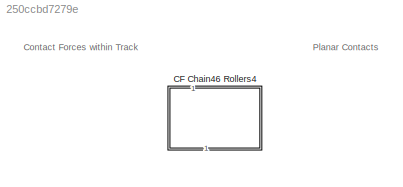
MODEL slx_250ccbd7279e
KIND library
CONFIG SolverName = VariableStepAuto
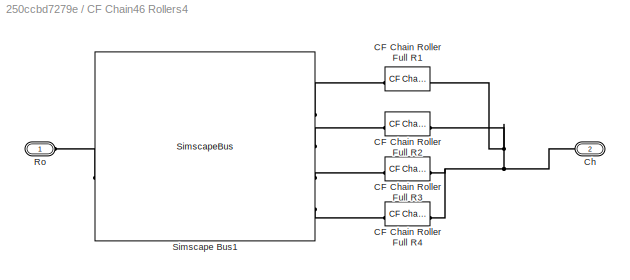
BLOCK [SubSystem] CF Chain46 Rollers4
  NameLocation = left
BLOCK [Reference] CF Chain46 Rollers4/CF Chain Roller Full R1  REF=sm_trackV_lib_chain_contact_s46/CF Chain46
Roller
  SourceBlock = sm_trackV_lib_chain_contact_s46/CF Chain46\nRoller
  SourceType = Contact Force, Full Chain to One Roller
BLOCK [Reference] CF Chain46 Rollers4/CF Chain Roller Full R2  REF=sm_trackV_lib_chain_contact_s46/CF Chain46
Roller
  SourceBlock = sm_trackV_lib_chain_contact_s46/CF Chain46\nRoller
  SourceType = Contact Force, Full Chain to One Roller
BLOCK [Reference] CF Chain46 Rollers4/CF Chain Roller Full R3  REF=sm_trackV_lib_chain_contact_s46/CF Chain46
Roller
  SourceBlock = sm_trackV_lib_chain_contact_s46/CF Chain46\nRoller
  SourceType = Contact Force, Full Chain to One Roller
BLOCK [Reference] CF Chain46 Rollers4/CF Chain Roller Full R4  REF=sm_trackV_lib_chain_contact_s46/CF Chain46
Roller
  SourceBlock = sm_trackV_lib_chain_contact_s46/CF Chain46\nRoller
  SourceType = Contact Force, Full Chain to One Roller
BLOCK [PMIOPort] CF Chain46 Rollers4/Ch
  Port = 2
  Side = Right
BLOCK [PMIOPort] CF Chain46 Rollers4/Ro
  Side = Left
BLOCK [SimscapeBus] CF Chain46 Rollers4/Simscape Bus1
  ConnectionType = Bus: CBO_Roller4
  HierarchyStrings = P1;P2;P3;P4
ANNOTATION (root): Contact Forces within Track
ANNOTATION (root): Planar Contacts
PLINE CF Chain46 Rollers4/CF Chain Roller Full R1:LConn1 -- CF Chain46 Rollers4/Simscape Bus1:LConn1
PNET net1: CF Chain46 Rollers4/CF Chain Roller Full R1:RConn1 -- CF Chain46 Rollers4/CF Chain Roller Full R2:RConn1 -- CF Chain46 Rollers4/CF Chain Roller Full R3:RConn1 -- CF Chain46 Rollers4/CF Chain Roller Full R4:RConn1 -- CF Chain46 Rollers4/Ch:RConn1
PLINE CF Chain46 Rollers4/CF Chain Roller Full R2:LConn1 -- CF Chain46 Rollers4/Simscape Bus1:LConn2
PLINE CF Chain46 Rollers4/CF Chain Roller Full R3:LConn1 -- CF Chain46 Rollers4/Simscape Bus1:LConn3
PLINE CF Chain46 Rollers4/CF Chain Roller Full R4:LConn1 -- CF Chain46 Rollers4/Simscape Bus1:LConn4
PLINE CF Chain46 Rollers4/Ro:RConn1 -- CF Chain46 Rollers4/Simscape Bus1:RConn1
note: PNET lines group multi-terminal physical nets as a canonical sorted terminal list (undirected conserving connections); 2-terminal nets keep the pairwise PLINE form
